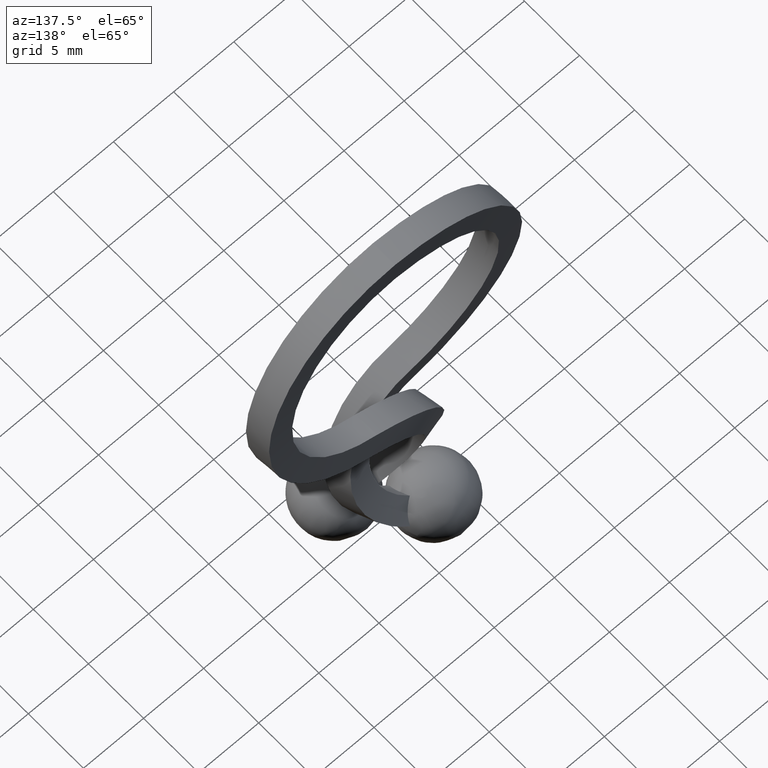
[diagram: clean part render]
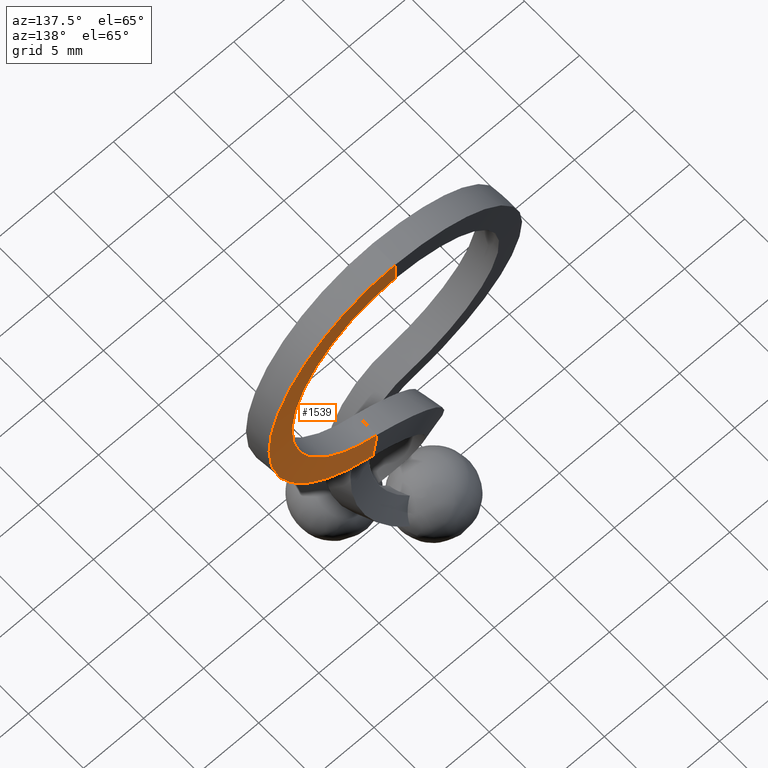
[diagram: same view with one face highlighted and labeled with its STEP entity id]
A machine part, auxiliary view. The second image highlights one B-rep face of the part: STEP entity #1539.
In plain terms, the highlighted face is a freeform B-spline surface patch.
Its self-contained STEP definition (entity closure, byte-faithful):
#389=CARTESIAN_POINT('',(0.0,1.000000000000086,9.0));
#390=VERTEX_POINT('',#389);
#503=CARTESIAN_POINT('',(0.0,1.000000000000086,11.0));
#504=VERTEX_POINT('',#503);
#526=CARTESIAN_POINT('',(0.0,1.000000000000086,9.0));
#527=CARTESIAN_POINT('',(0.0,1.000000000000112,9.666666666666679));
#528=CARTESIAN_POINT('',(0.0,1.000000000000112,10.333333333333300));
#529=CARTESIAN_POINT('',(0.0,1.000000000000086,11.0));
#530=QUASI_UNIFORM_CURVE('',3,(#526,#527,#528,#529),.UNSPECIFIED.,.F.,.U.);
#531=EDGE_CURVE('',#390,#504,#530,.T.);
#1181=CARTESIAN_POINT('',(2.358671733415280,1.960175868653700,-8.694603899422249));
#1182=VERTEX_POINT('',#1181);
#1183=CARTESIAN_POINT('',(0.0,1.000000000000086,9.0));
#1184=CARTESIAN_POINT('',(2.160044607639875,0.986222239334660,8.981542827946340));
#1185=CARTESIAN_POINT('',(4.289121531489674,1.016777109048160,8.163465915913625));
#1186=CARTESIAN_POINT('',(7.515632274580596,1.151762158218314,5.316503364010865));
#1187=CARTESIAN_POINT('',(8.591704229120559,1.255666344540554,3.299802553102772));
#1188=CARTESIAN_POINT('',(9.158078603461142,1.486917672419299,-0.961602885260092));
#1189=CARTESIAN_POINT('',(8.645969869432413,1.613280337012489,-3.188165971543126));
#1190=CARTESIAN_POINT('',(6.867397638584657,1.773889520182915,-5.878171976612744));
#1191=CARTESIAN_POINT('',(6.113481448117678,1.822553276664075,-6.666536533921343));
#1192=CARTESIAN_POINT('',(4.808900553031848,1.883856656664877,-7.615613490539588));
#1193=CARTESIAN_POINT('',(4.345562291164605,1.902339652144861,-7.893069629687600));
#1194=CARTESIAN_POINT('',(3.618940925393079,1.926691319504311,-8.244201571827865));
#1195=CARTESIAN_POINT('',(3.371472445355194,1.934247800890226,-8.350429767161149));
#1196=CARTESIAN_POINT('',(2.869848842227026,1.948126195009051,-8.539681288677091));
#1197=CARTESIAN_POINT('',(2.634191807590414,1.954044543144272,-8.617687042733014));
#1198=CARTESIAN_POINT('',(2.358671733415280,1.960175868653700,-8.694603899422249));
#1199=B_SPLINE_CURVE_WITH_KNOTS('',3,(#1183,#1184,#1185,#1186,#1187,#1188,#1189,#1190,#1191,#1192,#1193,#1194,#1195,#1196,#1197,#1198),.UNSPECIFIED.,.F.,.U.,(4,2,2,2,2,2,2,4),(0.007002813619227,0.257002813619228,0.507002813619228,0.757002813619228,0.882002813619228,0.944502813619228,0.975752813619228,1.006752868064310),.UNSPECIFIED.);
#1200=EDGE_CURVE('',#390,#1182,#1199,.T.);
#1417=CARTESIAN_POINT('',(2.918086088846110,2.173184630067220,-10.602971046314000));
#1418=VERTEX_POINT('',#1417);
#1432=CARTESIAN_POINT('',(0.0,1.000000000000086,11.0));
#1433=CARTESIAN_POINT('',(2.637885254668595,0.982968862560222,10.981544523933151));
#1434=CARTESIAN_POINT('',(5.239468115913781,1.020121979321178,9.986537795599750));
#1435=CARTESIAN_POINT('',(9.185084123649300,1.184807492708972,6.515938458268969));
#1436=CARTESIAN_POINT('',(10.503007031348680,1.311698946497510,4.055185525336440));
#1437=CARTESIAN_POINT('',(11.202740401248340,1.594274202513206,-1.147756243486239));
#1438=CARTESIAN_POINT('',(10.581571977277010,1.748755032924802,-3.867795254935917));
#1439=CARTESIAN_POINT('',(8.414674394746941,1.945203415947330,-7.156183773388555));
#1440=CARTESIAN_POINT('',(7.495484682660098,2.004745430964460,-8.120357236536002));
#1441=CARTESIAN_POINT('',(5.904126837887027,2.079784149950465,-9.281833325987806));
#1442=CARTESIAN_POINT('',(5.338823157229466,2.102414595981312,-9.621537857016127));
#1443=CARTESIAN_POINT('',(4.452137313251739,2.132240955638183,-10.051712841757301));
#1444=CARTESIAN_POINT('',(4.150129687975393,2.141498230115252,-10.181906254384860));
#1445=CARTESIAN_POINT('',(3.539541975815219,2.158459057230759,-10.413347426025229));
#1446=CARTESIAN_POINT('',(3.221441999331810,2.166406587277719,-10.517833133862940));
#1447=CARTESIAN_POINT('',(2.918086088846110,2.173184630067220,-10.602971046314000));
#1448=B_SPLINE_CURVE_WITH_KNOTS('',3,(#1432,#1433,#1434,#1435,#1436,#1437,#1438,#1439,#1440,#1441,#1442,#1443,#1444,#1445,#1446,#1447),.UNSPECIFIED.,.F.,.U.,(4,2,2,2,2,2,2,4),(0.0,0.250000000000000,0.500000000000000,0.750000000000000,0.875000000000000,0.937500000000000,0.968750000000000,0.999583580949750),.UNSPECIFIED.);
#1449=EDGE_CURVE('',#504,#1418,#1448,.T.);
#1456=CARTESIAN_POINT('',(-0.129426607856104,1.000824450084230,8.991082802349320));
#1457=CARTESIAN_POINT('',(-0.139076714815070,1.000890480502354,9.664425653849058));
#1458=CARTESIAN_POINT('',(-0.148726821774037,1.000956510920347,10.337768505348739));
#1459=CARTESIAN_POINT('',(-0.158376928732953,1.001022541338438,11.011111356848630));
#1460=CARTESIAN_POINT('',(-0.086290466733332,1.000558317400948,8.990557315125461));
#1461=CARTESIAN_POINT('',(-0.092724223203848,1.000602984648894,9.663888496823310));
#1462=CARTESIAN_POINT('',(-0.099157979674365,1.000647651896751,10.337219678521100));
#1463=CARTESIAN_POINT('',(-0.105591736144847,1.000692319144675,11.010550860219061));
#1464=CARTESIAN_POINT('',(2.115125816775048,0.985644386404287,8.987856773901850));
#1465=CARTESIAN_POINT('',(2.272820346721954,0.984499594444340,9.662390470212387));
#1466=CARTESIAN_POINT('',(2.430514876668889,0.983354802486628,10.336924166522859));
#1467=CARTESIAN_POINT('',(2.588209406614915,0.982210010527245,11.011457862831170));
#1468=CARTESIAN_POINT('',(4.284357642021761,1.016839568818327,8.154337137671178));
#1469=CARTESIAN_POINT('',(4.604312355711600,1.017940501529271,8.768110718362042));
#1470=CARTESIAN_POINT('',(4.924267069401391,1.019041434241041,9.381884299053956));
#1471=CARTESIAN_POINT('',(5.244221783092324,1.020142366951985,9.995657879744822));
#1472=CARTESIAN_POINT('',(7.507262647063368,1.151860416512823,5.310520341844707));
#1473=CARTESIAN_POINT('',(8.069319960943190,1.162901937081635,5.714327095299801));
#1474=CARTESIAN_POINT('',(8.631377274822988,1.173943457649621,6.118133848753761));
#1475=CARTESIAN_POINT('',(9.193434588701717,1.184984978218433,6.521940602208866));
#1476=CARTESIAN_POINT('',(8.582121430552586,1.255771154324001,3.296058412085022));
#1477=CARTESIAN_POINT('',(9.225603317130004,1.274513116333048,3.550361457708215));
#1478=CARTESIAN_POINT('',(9.869085203707368,1.293255078341542,3.804664503331126));
#1479=CARTESIAN_POINT('',(10.512567090282600,1.311997040350316,4.058967548954315));
#1480=CARTESIAN_POINT('',(9.147825415290518,1.487009779509485,-0.960601346574086));
#1481=CARTESIAN_POINT('',(9.836206002213725,1.522953292041091,-1.023294806821745));
#1482=CARTESIAN_POINT('',(10.524586589136890,1.558896804573246,-1.085988267069141));
#1483=CARTESIAN_POINT('',(11.212967176062280,1.594840317105120,-1.148681727316802));
#1484=CARTESIAN_POINT('',(8.636262316674465,1.613353243998028,-3.184677837482393));
#1485=CARTESIAN_POINT('',(9.287925889706630,1.658724635632610,-3.413514586728375));
#1486=CARTESIAN_POINT('',(9.939589462735480,1.704096027266913,-3.642351335974342));
#1487=CARTESIAN_POINT('',(10.591253035764391,1.749467418901766,-3.871188085218148));
#1488=CARTESIAN_POINT('',(6.859733141814134,1.773919539714979,-5.871651737165575));
#1489=CARTESIAN_POINT('',(7.380666252272709,1.831312834917905,-6.301949983630997));
#1490=CARTESIAN_POINT('',(7.901599362732658,1.888706130120917,-6.732248230096555));
#1491=CARTESIAN_POINT('',(8.422532473192629,1.946099425323753,-7.162546476563162));
#1492=CARTESIAN_POINT('',(5.541258268441002,1.859062903022595,-7.249837330895828));
#1493=CARTESIAN_POINT('',(5.964774019958300,1.922844505478804,-7.783727646947296));
#1494=CARTESIAN_POINT('',(6.388289771474458,1.986626107934889,-8.317617962998872));
#1495=CARTESIAN_POINT('',(6.811805522990762,2.050407710391227,-8.851508279050025));
#1496=CARTESIAN_POINT('',(3.870461195977120,1.920303423975548,-8.151614962868797));
#1497=CARTESIAN_POINT('',(4.169987491682137,1.988705739667451,-8.753803207915169));
#1498=CARTESIAN_POINT('',(4.469513787387517,2.057108055359398,-9.355991452961581));
#1499=CARTESIAN_POINT('',(4.769040083092644,2.125510371051235,-9.958179698008042));
#1500=CARTESIAN_POINT('',(2.864481149397407,1.948135200018182,-8.530886120761316));
#1501=CARTESIAN_POINT('',(3.089249207025037,2.018646296764977,-9.161992623050397));
#1502=CARTESIAN_POINT('',(3.314017264652575,2.089157393511803,-9.793099125339204));
#1503=CARTESIAN_POINT('',(3.538785322280342,2.159668490258606,-10.424205627628231));
#1504=CARTESIAN_POINT('',(2.627465112970135,1.954088146667208,-8.609302113001506));
#1505=CARTESIAN_POINT('',(2.823563135533947,2.025302373115853,-9.249587066574017));
#1506=CARTESIAN_POINT('',(3.019661158097820,2.096516599564487,-9.889872020146765));
#1507=CARTESIAN_POINT('',(3.215759180661566,2.167730826013132,-10.530156973719549));
#1508=CARTESIAN_POINT('',(2.298023231544196,1.961409074551031,-8.701035458965217));
#1509=CARTESIAN_POINT('',(2.482700741594949,2.032882782430981,-9.344603523353102));
#1510=CARTESIAN_POINT('',(2.667378251645674,2.104356490310921,-9.988171587740890));
#1511=CARTESIAN_POINT('',(2.852055761696442,2.175830198190871,-10.631739652128720));
#1512=CARTESIAN_POINT('',(2.238696793759034,1.962728438136897,-8.717573034766222));
#1513=CARTESIAN_POINT('',(2.425758914377390,2.034148521116289,-9.360465631617851));
#1514=CARTESIAN_POINT('',(2.612821034995726,2.105568604095674,-10.003358228469420));
#1515=CARTESIAN_POINT('',(2.799883155614072,2.176988687075069,-10.646250825321030));
#1516=CARTESIAN_POINT('',(2.184461744342413,1.963934353297458,-8.732687360270656));
#1517=CARTESIAN_POINT('',(2.371303391694931,2.035359137996639,-9.375637768997175));
#1518=CARTESIAN_POINT('',(2.558145039047436,2.106783922695816,-10.018588177723650));
#1519=CARTESIAN_POINT('',(2.744986686399949,2.178208707394999,-10.661538586450170));
#1520=B_SPLINE_SURFACE_WITH_KNOTS('',3,3,((#1456,#1460,#1464,#1468,#1472,#1476,#1480,#1484,#1488,#1492,#1496,#1500,#1504,#1508,#1512,#1516),(#1457,#1461,#1465,#1469,#1473,#1477,#1481,#1485,#1489,#1493,#1497,#1501,#1505,#1509,#1513,#1517),(#1458,#1462,#1466,#1470,#1474,#1478,#1482,#1486,#1490,#1494,#1498,#1502,#1506,#1510,#1514,#1518),(#1459,#1463,#1467,#1471,#1475,#1479,#1483,#1487,#1491,#1495,#1499,#1503,#1507,#1511,#1515,#1519)),.UNSPECIFIED.,.F.,.F.,.U.,(4,4),(4,1,2,2,2,1,2,2,4),(0.0,2.020236006340118),(0.0,0.159635756600708,8.143419276275509,16.127202795950311,24.110986315625109,28.102878075462510,31.096796895340560,32.094769835299907,32.278377146457757),.UNSPECIFIED.);
#1521=CARTESIAN_POINT('',(2.358671733415280,1.960175868653700,-8.694603899422249));
#1522=CARTESIAN_POINT('',(2.406236822656662,1.978269395819953,-8.856702257247230));
#1523=CARTESIAN_POINT('',(2.453793690143792,1.996363120896857,-9.018802998060613));
#1524=CARTESIAN_POINT('',(2.501335670883174,2.014457198618165,-9.180908050544234));
#1525=CARTESIAN_POINT('',(2.548877673218226,2.032551284558604,-9.343013176663142));
#1526=CARTESIAN_POINT('',(2.596407264212756,2.050645665269995,-9.505121897976462));
#1527=CARTESIAN_POINT('',(2.643925655543665,2.068740311238750,-9.667233860920595));
#1528=CARTESIAN_POINT('',(2.735350449898801,2.103554185199724,-9.979135262873863));
#1529=CARTESIAN_POINT('',(2.826733524946121,2.138369047400174,-10.291048743505680));
#1530=CARTESIAN_POINT('',(2.918086088846110,2.173184630067220,-10.602971046314000));
#1531=B_SPLINE_CURVE_WITH_KNOTS('',3,(#1521,#1522,#1523,#1524,#1525,#1526,#1527,#1528,#1529,#1530),.UNSPECIFIED.,.F.,.U.,(4,3,3,4),(2.311885E-010,0.000509692036252,0.001019384072684,0.002000025220951),.UNSPECIFIED.);
#1532=EDGE_CURVE('',#1182,#1418,#1531,.T.);
#1533=ORIENTED_EDGE('',*,*,#1532,.F.);
#1534=ORIENTED_EDGE('',*,*,#1200,.F.);
#1535=ORIENTED_EDGE('',*,*,#531,.T.);
#1536=ORIENTED_EDGE('',*,*,#1449,.T.);
#1537=EDGE_LOOP('',(#1533,#1534,#1535,#1536));
#1538=FACE_OUTER_BOUND('',#1537,.T.);
#1539=ADVANCED_FACE('',(#1538),#1520,.T.);